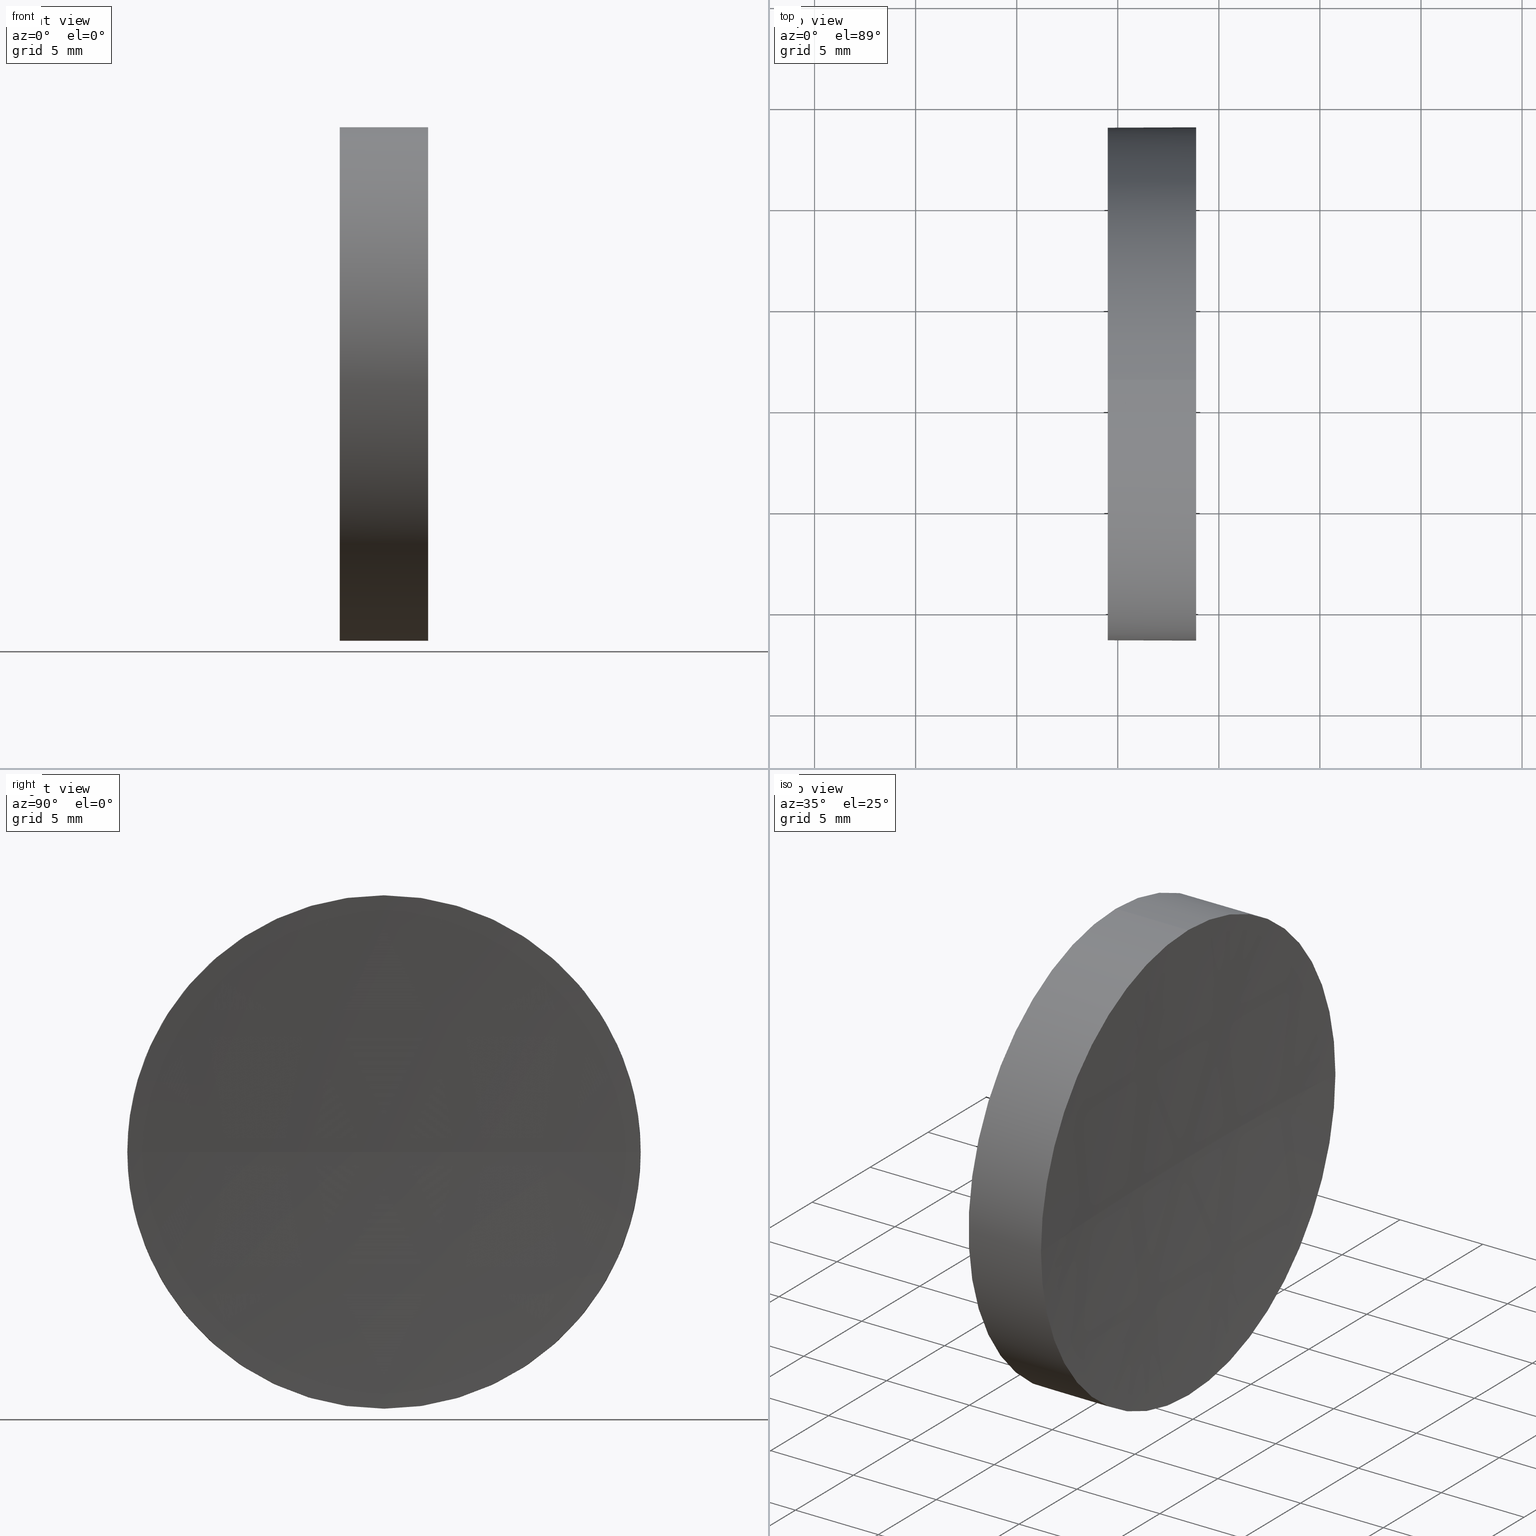
[diagram: canonical four-view strip — front | top / right | iso, engineering-drawing reading convention]
A machine part, canonical four-view strip (front | top / right | iso — engineering-drawing reading convention). The complete STEP part file that produces these views, byte-faithful:
ISO-10303-21;
HEADER;
FILE_DESCRIPTION (( 'STEP AP214' ),
    '1' );
FILE_NAME ('120312.STEP',
    '2019-06-26T07:40:42',
    ( '' ),
    ( '' ),
    'SwSTEP 2.0',
    'SolidWorks 2016',
    '' );
FILE_SCHEMA (( 'AUTOMOTIVE_DESIGN' ));
ENDSEC;

DATA;
#1 = EDGE_CURVE ( 'NONE', #71, #185, #38, .T. ) ;
#2 = CIRCLE ( 'NONE', #3, 216.8999999999999800 ) ;
#3 = AXIS2_PLACEMENT_3D ( 'NONE', #7, #108, #54 ) ;
#4 = PRODUCT ( '120312', '120312', '', ( #69 ) ) ;
#5 = DIRECTION ( 'NONE',  ( 0.0000000000000000000, -1.000000000000000000, -1.224646799147353200E-016 ) ) ;
#6 = DIRECTION ( 'NONE',  ( -1.000000000000000000, -0.0000000000000000000, -0.0000000000000000000 ) ) ;
#7 = CARTESIAN_POINT ( 'NONE',  ( 340.4068341785476800, 71.19398908659371700, 0.0000000000000000000 ) ) ;
#8 = DIRECTION ( 'NONE',  ( 0.0000000000000000000, 0.0000000000000000000, 1.000000000000000000 ) ) ;
#9 = ADVANCED_BREP_SHAPE_REPRESENTATION ( '120312', ( #46, #140 ), #89 ) ;
#10 = CYLINDRICAL_SURFACE ( 'NONE', #24, 12.70000000000001000 ) ;
#11 = AXIS2_PLACEMENT_3D ( 'NONE', #35, #36, #145 ) ;
#12 = CIRCLE ( 'NONE', #11, 12.70000000000001700 ) ;
#13 = AXIS2_PLACEMENT_3D ( 'NONE', #105, #148, #128 ) ;
#14 = CIRCLE ( 'NONE', #184, 216.8999999999999800 ) ;
#15 = ORIENTED_EDGE ( 'NONE', *, *, #118, .F. ) ;
#16 = ORIENTED_EDGE ( 'NONE', *, *, #146, .T. ) ;
#17 = PRODUCT_DEFINITION_FORMATION_WITH_SPECIFIED_SOURCE ( '�κ�', '', #4, .NOT_KNOWN. ) ;
#18 = DIRECTION ( 'NONE',  ( 0.0000000000000000000, 0.0000000000000000000, 1.000000000000000000 ) ) ;
#19 = DIRECTION ( 'NONE',  ( -1.000000000000000000, -0.0000000000000000000, -0.0000000000000000000 ) ) ;
#20 = DIRECTION ( 'NONE',  ( -1.000000000000000000, -0.0000000000000000000, -0.0000000000000000000 ) ) ;
#21 = CARTESIAN_POINT ( 'NONE',  ( 0.0000000000000000000, 0.0000000000000000000, 0.0000000000000000000 ) ) ;
#22 = UNCERTAINTY_MEASURE_WITH_UNIT (LENGTH_MEASURE( 1.000000000000000100E-005 ), #107, 'distance_accuracy_value', 'NONE');
#23 = SURFACE_SIDE_STYLE ('',( #76 ) ) ;
#24 = AXIS2_PLACEMENT_3D ( 'NONE', #39, #6, #18 ) ;
#25 = ORIENTED_EDGE ( 'NONE', *, *, #154, .T. ) ;
#26 = DIRECTION ( 'NONE',  ( 1.000000000000000000, 0.0000000000000000000, 0.0000000000000000000 ) ) ;
#27 = SURFACE_STYLE_FILL_AREA ( #119 ) ;
#28 = EDGE_LOOP ( 'NONE', ( #15, #16, #129, #103 ) ) ;
#29 = ORIENTED_EDGE ( 'NONE', *, *, #151, .F. ) ;
#30 = ORIENTED_EDGE ( 'NONE', *, *, #1, .T. ) ;
#31 = EDGE_CURVE ( 'NONE', #171, #185, #32, .T. ) ;
#32 = LINE ( 'NONE', #56, #181 ) ;
#33 = PRODUCT_RELATED_PRODUCT_CATEGORY ( 'part', '', ( #4 ) ) ;
#34 = AXIS2_PLACEMENT_3D ( 'NONE', #68, #19, #132 ) ;
#35 = CARTESIAN_POINT ( 'NONE',  ( 123.8789606841635900, 71.19398908659370300, 0.0000000000000000000 ) ) ;
#36 = DIRECTION ( 'NONE',  ( -1.000000000000000000, -0.0000000000000000000, -0.0000000000000000000 ) ) ;
#37 =( LENGTH_UNIT ( ) NAMED_UNIT ( * ) SI_UNIT ( .MILLI., .METRE. ) );
#38 = CIRCLE ( 'NONE', #44, 12.70000000000000300 ) ;
#39 = CARTESIAN_POINT ( 'NONE',  ( 111.9552297575605700, 71.19398908659370300, 0.0000000000000000000 ) ) ;
#40 = DIRECTION ( 'NONE',  ( 0.0000000000000000000, 0.0000000000000000000, 1.000000000000000000 ) ) ;
#41 = SURFACE_SIDE_STYLE ('',( #27 ) ) ;
#42 = FILL_AREA_STYLE_COLOUR ( '', #104 ) ;
#43 = CARTESIAN_POINT ( 'NONE',  ( 119.5068341785477100, 71.19398908659370300, 0.0000000000000000000 ) ) ;
#44 = AXIS2_PLACEMENT_3D ( 'NONE', #43, #150, #53 ) ;
#45 = FACE_OUTER_BOUND ( 'NONE', #170, .T. ) ;
#46 = MANIFOLD_SOLID_BREP ( '��ת1', #130 ) ;
#47 = CIRCLE ( 'NONE', #34, 12.70000000000001700 ) ;
#48 = AXIS2_PLACEMENT_3D ( 'NONE', #175, #121, #161 ) ;
#49 = EDGE_LOOP ( 'NONE', ( #30, #100 ) ) ;
#50 = DIRECTION ( 'NONE',  ( 0.0000000000000000000, -1.224646799147353200E-016, 1.000000000000000000 ) ) ;
#51 = ORIENTED_EDGE ( 'NONE', *, *, #166, .T. ) ;
#52 = CARTESIAN_POINT ( 'NONE',  ( 123.8789606841636000, 83.89398908659374900, 1.555301434917142400E-015 ) ) ;
#53 = DIRECTION ( 'NONE',  ( 0.0000000000000000000, 0.0000000000000000000, 1.000000000000000000 ) ) ;
#54 = DIRECTION ( 'NONE',  ( -1.000000000000000000, 0.0000000000000000000, 0.0000000000000000000 ) ) ;
#55 = CARTESIAN_POINT ( 'NONE',  ( 119.5068341785477100, 71.19398908659370300, 0.0000000000000000000 ) ) ;
#56 = CARTESIAN_POINT ( 'NONE',  ( 111.9552297575605700, 71.19398908659370300, -12.70000000000001000 ) ) ;
#57 = CIRCLE ( 'NONE', #48, 12.70000000000000300 ) ;
#58 = PRESENTATION_LAYER_ASSIGNMENT (  '', '', ( #61 ) ) ;
#59 = CIRCLE ( 'NONE', #13, 12.70000000000001700 ) ;
#60 = PRESENTATION_STYLE_ASSIGNMENT (( #147 ) ) ;
#61 = STYLED_ITEM ( 'NONE', ( #177 ), #9 ) ;
#62 = AXIS2_PLACEMENT_3D ( 'NONE', #122, #81, #66 ) ;
#63 = APPLICATION_CONTEXT ( 'automotive_design' ) ;
#64 = VERTEX_POINT ( 'NONE', #112 ) ;
#65 = DIRECTION ( 'NONE',  ( -1.000000000000000000, -0.0000000000000000000, -0.0000000000000000000 ) ) ;
#66 = DIRECTION ( 'NONE',  ( 0.0000000000000000000, -1.000000000000000000, 0.0000000000000000000 ) ) ;
#67 = EDGE_LOOP ( 'NONE', ( #106, #153, #137, #134, #135 ) ) ;
#68 = CARTESIAN_POINT ( 'NONE',  ( 123.8789606841635900, 71.19398908659370300, 0.0000000000000000000 ) ) ;
#69 = PRODUCT_CONTEXT ( 'NONE', #63, 'mechanical' ) ;
#70 = CARTESIAN_POINT ( 'NONE',  ( 111.9552297575605700, 71.19398908659370300, 12.70000000000001000 ) ) ;
#71 = VERTEX_POINT ( 'NONE', #149 ) ;
#72 = MECHANICAL_DESIGN_GEOMETRIC_PRESENTATION_REPRESENTATION (  '', ( #174 ), #80 ) ;
#73 = COLOUR_RGB ( '',1.000000000000000000, 1.000000000000000000, 1.000000000000000000 ) ;
#74 = ORIENTED_EDGE ( 'NONE', *, *, #114, .T. ) ;
#75 =( GEOMETRIC_REPRESENTATION_CONTEXT ( 3 ) GLOBAL_UNCERTAINTY_ASSIGNED_CONTEXT ( ( #22 ) ) GLOBAL_UNIT_ASSIGNED_CONTEXT ( ( #107, #79, #109 ) ) REPRESENTATION_CONTEXT ( 'NONE', 'WORKASPACE' ) );
#76 = SURFACE_STYLE_FILL_AREA ( #111 ) ;
#77 = CYLINDRICAL_SURFACE ( 'NONE', #165, 12.70000000000001000 ) ;
#78 = SURFACE_STYLE_USAGE ( .BOTH. , #41 ) ;
#79 =( NAMED_UNIT ( * ) PLANE_ANGLE_UNIT ( ) SI_UNIT ( $, .RADIAN. ) );
#80 =( GEOMETRIC_REPRESENTATION_CONTEXT ( 3 ) GLOBAL_UNCERTAINTY_ASSIGNED_CONTEXT ( ( #136 ) ) GLOBAL_UNIT_ASSIGNED_CONTEXT ( ( #37, #94, #92 ) ) REPRESENTATION_CONTEXT ( 'NONE', 'WORKASPACE' ) );
#81 = DIRECTION ( 'NONE',  ( 0.0000000000000000000, 0.0000000000000000000, 1.000000000000000000 ) ) ;
#82 = DIRECTION ( 'NONE',  ( 0.0000000000000000000, 0.0000000000000000000, 1.000000000000000000 ) ) ;
#83 = ADVANCED_FACE ( 'NONE', ( #45 ), #77, .T. ) ;
#84 = AXIS2_PLACEMENT_3D ( 'NONE', #176, #40, #133 ) ;
#85 = EDGE_CURVE ( 'NONE', #138, #71, #117, .T. ) ;
#86 = ORIENTED_EDGE ( 'NONE', *, *, #163, .F. ) ;
#87 = AXIS2_PLACEMENT_3D ( 'NONE', #183, #96, #8 ) ;
#88 = FACE_OUTER_BOUND ( 'NONE', #28, .T. ) ;
#89 =( GEOMETRIC_REPRESENTATION_CONTEXT ( 3 ) GLOBAL_UNCERTAINTY_ASSIGNED_CONTEXT ( ( #113 ) ) GLOBAL_UNIT_ASSIGNED_CONTEXT ( ( #97, #131, #142 ) ) REPRESENTATION_CONTEXT ( 'NONE', 'WORKASPACE' ) );
#90 = APPLICATION_PROTOCOL_DEFINITION ( 'draft international standard', 'automotive_design', 1998, #63 ) ;
#91 = CARTESIAN_POINT ( 'NONE',  ( 123.8789606841635900, 71.19398908659370300, 12.70000000000001500 ) ) ;
#92 =( NAMED_UNIT ( * ) SI_UNIT ( $, .STERADIAN. ) SOLID_ANGLE_UNIT ( ) );
#93 = ADVANCED_FACE ( 'NONE', ( #186 ), #124, .F. ) ;
#94 =( NAMED_UNIT ( * ) PLANE_ANGLE_UNIT ( ) SI_UNIT ( $, .RADIAN. ) );
#95 = CARTESIAN_POINT ( 'NONE',  ( 340.4068341785476800, 71.19398908659371700, 0.0000000000000000000 ) ) ;
#96 = DIRECTION ( 'NONE',  ( -1.000000000000000000, -0.0000000000000000000, -0.0000000000000000000 ) ) ;
#97 =( LENGTH_UNIT ( ) NAMED_UNIT ( * ) SI_UNIT ( .MILLI., .METRE. ) );
#98 = EDGE_LOOP ( 'NONE', ( #143, #86, #110, #25 ) ) ;
#99 = ORIENTED_EDGE ( 'NONE', *, *, #31, .F. ) ;
#100 = ORIENTED_EDGE ( 'NONE', *, *, #151, .T. ) ;
#101 = MECHANICAL_DESIGN_GEOMETRIC_PRESENTATION_REPRESENTATION (  '', ( #61 ), #75 ) ;
#102 = ORIENTED_EDGE ( 'NONE', *, *, #85, .T. ) ;
#103 = ORIENTED_EDGE ( 'NONE', *, *, #166, .F. ) ;
#104 = COLOUR_RGB ( '',1.000000000000000000, 1.000000000000000000, 1.000000000000000000 ) ;
#105 = CARTESIAN_POINT ( 'NONE',  ( 123.8789606841635900, 71.19398908659370300, 0.0000000000000000000 ) ) ;
#106 = ORIENTED_EDGE ( 'NONE', *, *, #118, .T. ) ;
#107 =( LENGTH_UNIT ( ) NAMED_UNIT ( * ) SI_UNIT ( .MILLI., .METRE. ) );
#108 = DIRECTION ( 'NONE',  ( 0.0000000000000000000, 0.0000000000000000000, -1.000000000000000000 ) ) ;
#109 =( NAMED_UNIT ( * ) SI_UNIT ( $, .STERADIAN. ) SOLID_ANGLE_UNIT ( ) );
#110 = ORIENTED_EDGE ( 'NONE', *, *, #114, .F. ) ;
#111 = FILL_AREA_STYLE ('',( #42 ) ) ;
#112 = CARTESIAN_POINT ( 'NONE',  ( 123.8789606841636000, 58.49398908659367200, 0.0000000000000000000 ) ) ;
#113 = UNCERTAINTY_MEASURE_WITH_UNIT (LENGTH_MEASURE( 1.000000000000000100E-005 ), #97, 'distance_accuracy_value', 'NONE');
#114 = EDGE_CURVE ( 'NONE', #64, #138, #47, .T. ) ;
#115 = AXIS2_PLACEMENT_3D ( 'NONE', #55, #26, #125 ) ;
#116 = VERTEX_POINT ( 'NONE', #162 ) ;
#117 = LINE ( 'NONE', #70, #172 ) ;
#118 = EDGE_CURVE ( 'NONE', #169, #171, #152, .T. ) ;
#119 = FILL_AREA_STYLE ('',( #182 ) ) ;
#120 = APPLICATION_PROTOCOL_DEFINITION ( 'draft international standard', 'automotive_design', 1998, #178 ) ;
#121 = DIRECTION ( 'NONE',  ( -1.000000000000000000, -0.0000000000000000000, -0.0000000000000000000 ) ) ;
#122 = CARTESIAN_POINT ( 'NONE',  ( 340.4068341785476800, 71.19398908659371700, 0.0000000000000000000 ) ) ;
#123 = ADVANCED_FACE ( 'NONE', ( #164 ), #160, .F. ) ;
#124 = SPHERICAL_SURFACE ( 'NONE', #84, 216.8999999999999800 ) ;
#125 = DIRECTION ( 'NONE',  ( 0.0000000000000000000, 0.0000000000000000000, -1.000000000000000000 ) ) ;
#126 = FACE_OUTER_BOUND ( 'NONE', #67, .T. ) ;
#127 = PRODUCT_DEFINITION ( 'δ֪', '', #17, #168 ) ;
#128 = DIRECTION ( 'NONE',  ( 0.0000000000000000000, 0.0000000000000000000, 1.000000000000000000 ) ) ;
#129 = ORIENTED_EDGE ( 'NONE', *, *, #154, .F. ) ;
#130 = CLOSED_SHELL ( 'NONE', ( #159, #179, #93, #83, #123 ) ) ;
#131 =( NAMED_UNIT ( * ) PLANE_ANGLE_UNIT ( ) SI_UNIT ( $, .RADIAN. ) );
#132 = DIRECTION ( 'NONE',  ( 0.0000000000000000000, 0.0000000000000000000, 1.000000000000000000 ) ) ;
#133 = DIRECTION ( 'NONE',  ( 0.0000000000000000000, -1.000000000000000000, 0.0000000000000000000 ) ) ;
#134 = ORIENTED_EDGE ( 'NONE', *, *, #85, .F. ) ;
#135 = ORIENTED_EDGE ( 'NONE', *, *, #163, .T. ) ;
#136 = UNCERTAINTY_MEASURE_WITH_UNIT (LENGTH_MEASURE( 1.000000000000000100E-005 ), #37, 'distance_accuracy_value', 'NONE');
#137 = ORIENTED_EDGE ( 'NONE', *, *, #1, .F. ) ;
#138 = VERTEX_POINT ( 'NONE', #91 ) ;
#139 = DIRECTION ( 'NONE',  ( 0.0000000000000000000, 0.0000000000000000000, 1.000000000000000000 ) ) ;
#140 = AXIS2_PLACEMENT_3D ( 'NONE', #21, #139, #173 ) ;
#141 = CARTESIAN_POINT ( 'NONE',  ( 119.5068341785477100, 71.19398908659370300, -12.70000000000000300 ) ) ;
#142 =( NAMED_UNIT ( * ) SI_UNIT ( $, .STERADIAN. ) SOLID_ANGLE_UNIT ( ) );
#143 = ORIENTED_EDGE ( 'NONE', *, *, #146, .F. ) ;
#144 = CARTESIAN_POINT ( 'NONE',  ( 111.9552297575605700, 71.19398908659370300, 0.0000000000000000000 ) ) ;
#145 = DIRECTION ( 'NONE',  ( 0.0000000000000000000, 0.0000000000000000000, 1.000000000000000000 ) ) ;
#146 = EDGE_CURVE ( 'NONE', #169, #116, #14, .T. ) ;
#147 = SURFACE_STYLE_USAGE ( .BOTH. , #23 ) ;
#148 = DIRECTION ( 'NONE',  ( -1.000000000000000000, -0.0000000000000000000, -0.0000000000000000000 ) ) ;
#149 = CARTESIAN_POINT ( 'NONE',  ( 119.5068341785477100, 71.19398908659370300, 12.70000000000000300 ) ) ;
#150 = DIRECTION ( 'NONE',  ( -1.000000000000000000, -0.0000000000000000000, -0.0000000000000000000 ) ) ;
#151 = EDGE_CURVE ( 'NONE', #185, #71, #57, .T. ) ;
#152 = CIRCLE ( 'NONE', #87, 12.70000000000001700 ) ;
#153 = ORIENTED_EDGE ( 'NONE', *, *, #31, .T. ) ;
#154 = EDGE_CURVE ( 'NONE', #64, #116, #2, .T. ) ;
#155 = SHAPE_DEFINITION_REPRESENTATION ( #158, #9 ) ;
#156 = SPHERICAL_SURFACE ( 'NONE', #62, 216.8999999999999800 ) ;
#157 = CARTESIAN_POINT ( 'NONE',  ( 123.8789606841635900, 71.19398908659370300, -12.70000000000001500 ) ) ;
#158 = PRODUCT_DEFINITION_SHAPE ( 'NONE', 'NONE',  #127 ) ;
#159 = ADVANCED_FACE ( 'NONE', ( #126 ), #10, .T. ) ;
#160 = PLANE ( 'NONE',  #115 ) ;
#161 = DIRECTION ( 'NONE',  ( 0.0000000000000000000, 0.0000000000000000000, 1.000000000000000000 ) ) ;
#162 = CARTESIAN_POINT ( 'NONE',  ( 123.5068341785476900, 71.19398908659370300, 0.0000000000000000000 ) ) ;
#163 = EDGE_CURVE ( 'NONE', #138, #169, #12, .T. ) ;
#164 = FACE_OUTER_BOUND ( 'NONE', #49, .T. ) ;
#165 = AXIS2_PLACEMENT_3D ( 'NONE', #144, #20, #82 ) ;
#166 = EDGE_CURVE ( 'NONE', #171, #64, #59, .T. ) ;
#167 = PRESENTATION_LAYER_ASSIGNMENT (  '', '', ( #174 ) ) ;
#168 = PRODUCT_DEFINITION_CONTEXT ( 'detailed design', #178, 'design' ) ;
#169 = VERTEX_POINT ( 'NONE', #52 ) ;
#170 = EDGE_LOOP ( 'NONE', ( #99, #51, #74, #102, #29 ) ) ;
#171 = VERTEX_POINT ( 'NONE', #157 ) ;
#172 = VECTOR ( 'NONE', #65, 1000.000000000000000 ) ;
#173 = DIRECTION ( 'NONE',  ( 1.000000000000000000, 0.0000000000000000000, 0.0000000000000000000 ) ) ;
#174 = STYLED_ITEM ( 'NONE', ( #60 ), #46 ) ;
#175 = CARTESIAN_POINT ( 'NONE',  ( 119.5068341785477100, 71.19398908659370300, 0.0000000000000000000 ) ) ;
#176 = CARTESIAN_POINT ( 'NONE',  ( 340.4068341785476800, 71.19398908659371700, 0.0000000000000000000 ) ) ;
#177 = PRESENTATION_STYLE_ASSIGNMENT (( #78 ) ) ;
#178 = APPLICATION_CONTEXT ( 'automotive_design' ) ;
#179 = ADVANCED_FACE ( 'NONE', ( #88 ), #156, .F. ) ;
#180 = DIRECTION ( 'NONE',  ( -1.000000000000000000, -0.0000000000000000000, -0.0000000000000000000 ) ) ;
#181 = VECTOR ( 'NONE', #180, 1000.000000000000000 ) ;
#182 = FILL_AREA_STYLE_COLOUR ( '', #73 ) ;
#183 = CARTESIAN_POINT ( 'NONE',  ( 123.8789606841635900, 71.19398908659370300, 0.0000000000000000000 ) ) ;
#184 = AXIS2_PLACEMENT_3D ( 'NONE', #95, #50, #5 ) ;
#185 = VERTEX_POINT ( 'NONE', #141 ) ;
#186 = FACE_OUTER_BOUND ( 'NONE', #98, .T. ) ;
ENDSEC;
END-ISO-10303-21;
